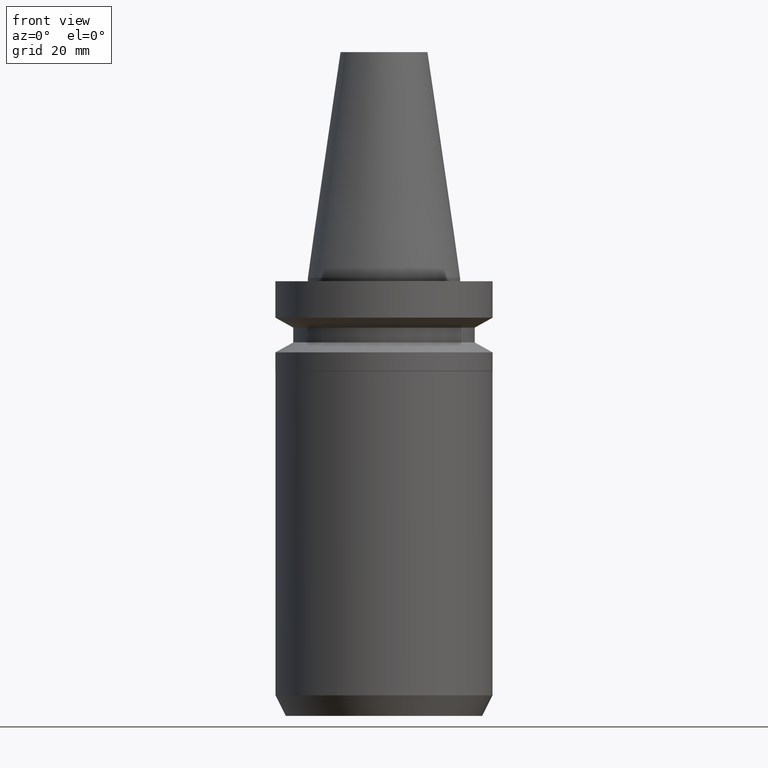
[diagram: clean part render]
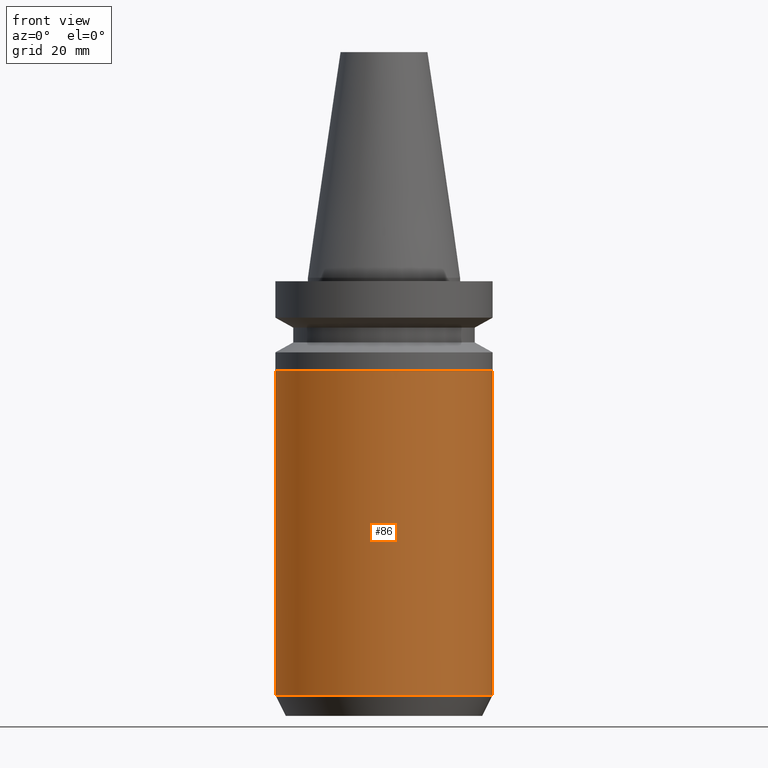
[diagram: same view with one face highlighted and labeled with its STEP entity id]
A machine part, front view. The second image highlights one B-rep face of the part: STEP entity #86.
In plain terms, the highlighted cylindrical surface (bore or boss wall) has radius 31.45 mm, axis along (0, -0, -1).
Its self-contained STEP definition (entity closure, byte-faithful):
#66=EDGE_CURVE('Unnamed[1]',#158,#158,#159,.T.);
#86=ADVANCED_FACE('Unnamed[1]',(#187,#188),#189,.T.);
#112=EDGE_CURVE('Unnamed[1]',#228,#228,#229,.T.);
#158=VERTEX_POINT('',#273);
#159=CIRCLE('',#274,31.4500000000001);
#187=FACE_BOUND('',#309,.T.);
#188=FACE_BOUND('',#310,.T.);
#189=CYLINDRICAL_SURFACE('',#311,31.4500000000001);
#228=VERTEX_POINT('',#360);
#229=CIRCLE('',#361,31.4500000000002);
#273=CARTESIAN_POINT('',(7.41192725346147E-015,31.4500000000001,-121.045958044751));
#274=AXIS2_PLACEMENT_3D('',#397,#398,#399);
#309=EDGE_LOOP('',(#426));
#310=EDGE_LOOP('',(#427));
#311=AXIS2_PLACEMENT_3D('',#428,#429,#430);
#360=CARTESIAN_POINT('',(1.65633479584686E-015,31.4500000000002,-27.0500000000011));
#361=AXIS2_PLACEMENT_3D('',#474,#475,#476);
#397=CARTESIAN_POINT('',(7.41192725346147E-015,1.78586184716271E-014,-121.045958044751));
#398=DIRECTION('',(6.12323399573677E-017,-3.16409739642802E-016,-1.0));
#399=DIRECTION('',(1.45473560128628E-032,1.0,-3.16409739642802E-016));
#426=ORIENTED_EDGE('',*,*,#66,.F.);
#427=ORIENTED_EDGE('',*,*,#112,.T.);
#428=CARTESIAN_POINT('',(4.53413102465417E-015,3.27292367778345E-014,-74.0479790223762));
#429=DIRECTION('',(6.12323399573677E-017,-3.16409739642802E-016,-1.0));
#430=DIRECTION('',(1.45473560128656E-032,1.0,-3.16409739642802E-016));
#474=CARTESIAN_POINT('',(1.65633479584686E-015,4.75998550840418E-014,-27.0500000000011));
#475=DIRECTION('',(6.12323399573677E-017,-3.16409739642801E-016,-1.0));
#476=DIRECTION('',(1.45473560128628E-032,1.0,-3.16409739642801E-016));